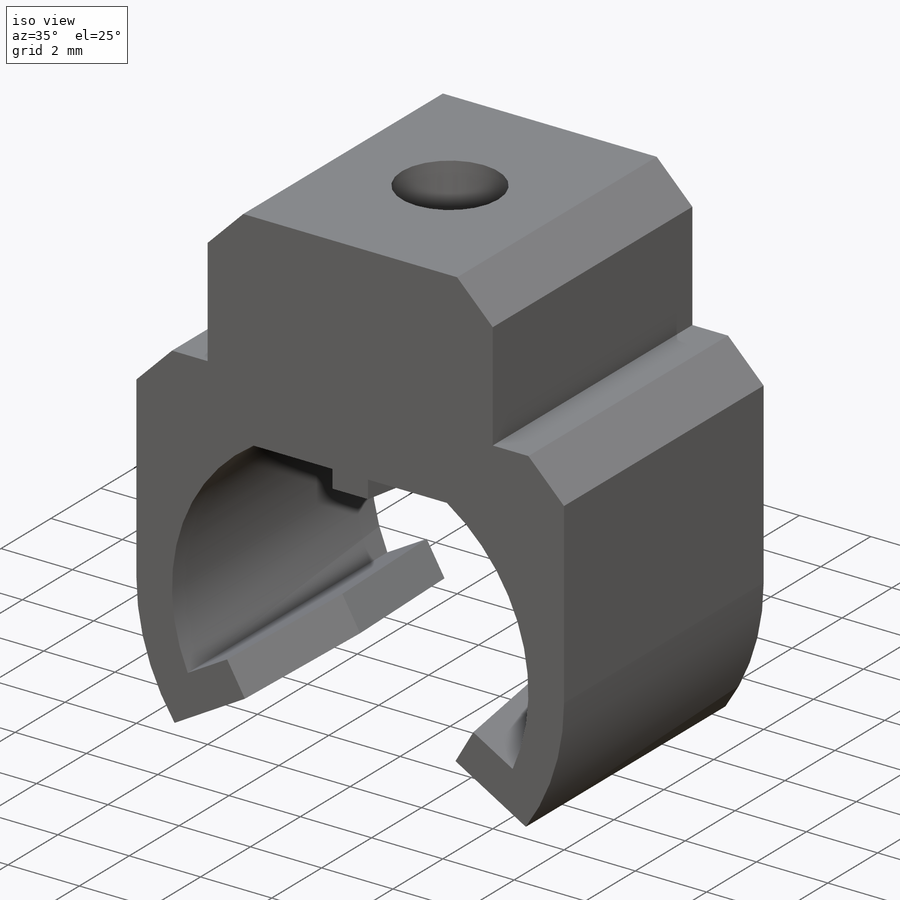
[diagram: iso view]
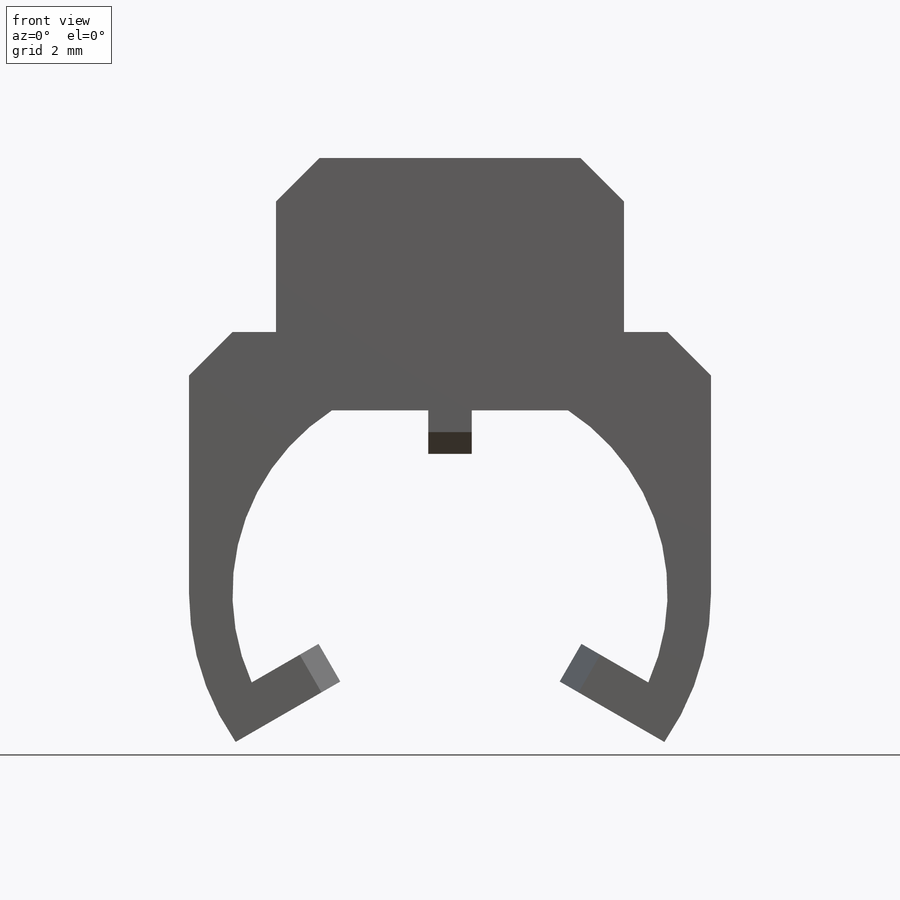
[diagram: front view]
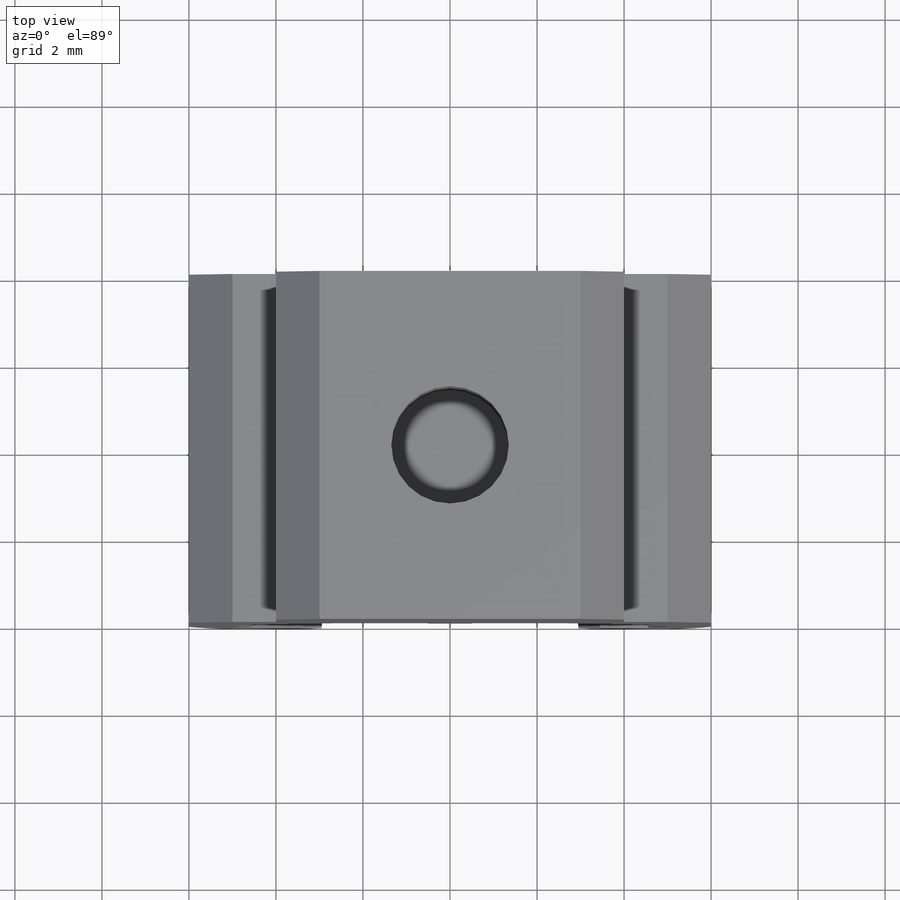
[diagram: top view]
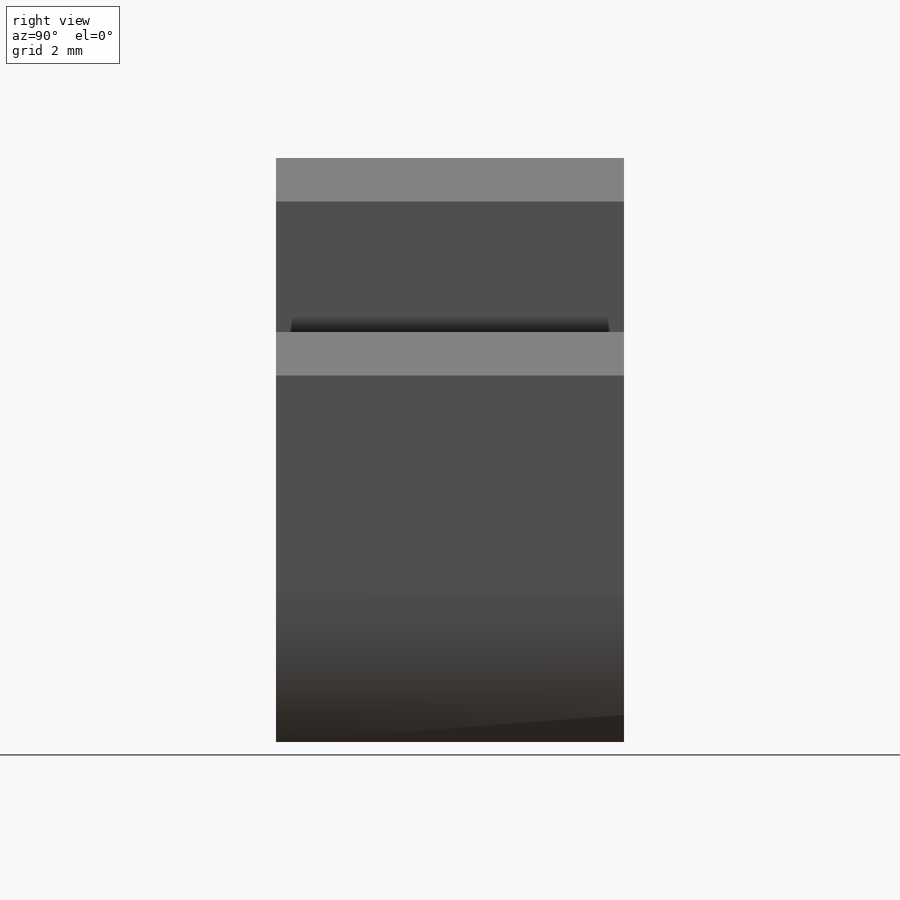
[diagram: right view]
SOLIDWORKS PART (.sldprt)
format: sldprt  version: not decoded by parser v0  size: 234,496 bytes
history: native  units: mm
features: chamfer x3, sketch x2, material x1, extrude x1, plane x1, cut_extrude x1 (+16 scaffold rows collapsed)
feature tree (25):
  scaffold x16  (default folders/planes/origin — collapsed)
  material  "PTFE (general)"
  sketch  "Sketch1"  dims[c1.D1=6.0mm c1.D5=10.0mm c1.D6=6.4mm c1.D2=6.0mm c1.D3=6.0mm c1.D4=~5.52499mm c2.D4=45.0deg c2.D8=~4.242641mm c3.D8=45.0deg c4.D8=6.0mm c4.D9=3.2mm c4.CoreRad=3.2mm c4.D11=3.2mm c4.D12=3.2mm c4.D3=4.0mm c5.D8=8.0mm c5.D13=4.0mm c5.D4=~4.242641mm c6.D4=30.0deg c6.D9=0.5mm c6.D10=0.5mm c6.D12=0.5mm c6.D14=3.0mm c7.D14=60.0deg c8.D14=~5.196152mm c8.D6=3.0mm c9.D6=90.0deg c9.D11=3.0mm c10.D11=30.0deg c10.D14=3.0mm c11.D14=60.0deg c12.D14=0.5mm c12.D15=0.5mm c12.D16=1.0mm c12.D17=6.0mm c12.D18=10.0mm c12.D6=0.5mm c12.D7=0.5mm c12.D8=0.5mm c12.D9=0.5mm c12.D10=0.5mm c12.D11=0.5mm c12.D12=0.5mm c12.D13=0.5mm]
  extrude  "Boss-Extrude2"  Depth=8mm
  plane  "Plane1"
  sketch  "Sketch11"  dims[D1=2.7mm D2=4.0mm]
  cut_extrude  "Cut-Extrude5"  Depth=5mm
  chamfer  "Chamfer1"  Distance=1mm Angle=45deg
  chamfer  "Chamfer2"  Distance=4mm
  chamfer  "Chamfer3"  Distance=0.5mm
decode coverage: 7 of 7 modeling features carry decoded parameters
note: ~ marks probable driven/reference dimensions
note: suppression state not decoded; provenance and decode notes live in map.json
